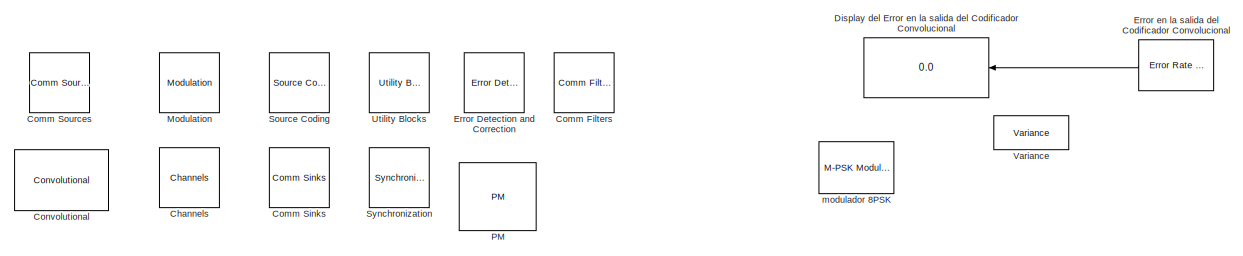
[diagram: root canvas - part 1/3, top center region]
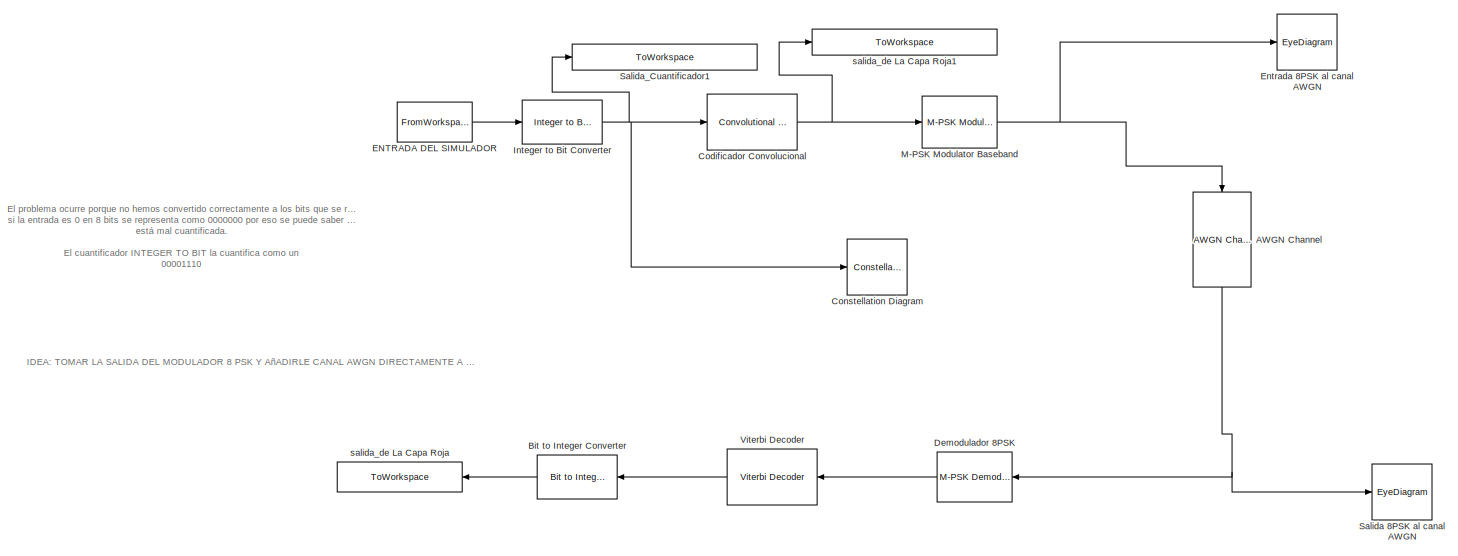
[diagram: root canvas - part 2/3, middle left region]
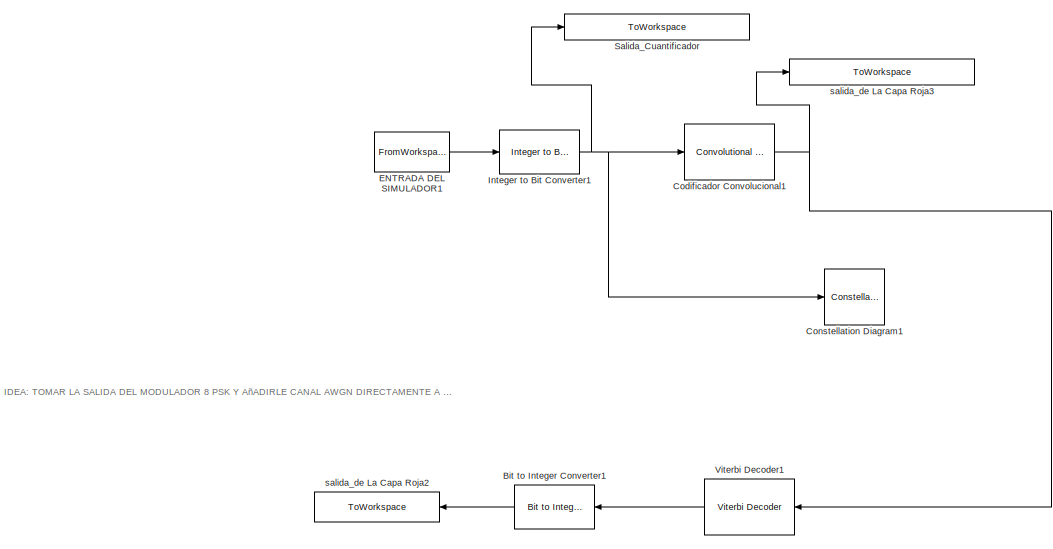
[diagram: root canvas - part 3/3, middle right region]
MODEL slx_94a819bdf3c8
KIND model
CONFIG AbsTol = auto
CONFIG FixedStep = auto
CONFIG MaxStep = auto
CONFIG MinStep = auto
CONFIG RelTol = 1e-3
CONFIG SampleTimeConstraint = Unconstrained
CONFIG Solver = VariableStepDiscrete
CONFIG SolverMode = SingleTasking
CONFIG SolverName = VariableStepDiscrete
CONFIG StartTime = 0.0
CONFIG StopTime = 420800
BLOCK [Reference] AWGN Channel  REF=commchan3/AWGN
Channel
  Ports = [1, 1]
  SourceBlock = commchan3/AWGN\nChannel
  SourceType = AWGN Channel
  UserDataPersistent = on
BLOCK [Reference] Bit to Integer Converter  REF=commutil2/Bit to Integer
Converter
  Ports = [1, 1]
  SourceBlock = commutil2/Bit to Integer\nConverter
  SourceType = Bit to Integer Converter
BLOCK [Reference] Bit to Integer Converter1  REF=commutil2/Bit to Integer
Converter
  Ports = [1, 1]
  SourceBlock = commutil2/Bit to Integer\nConverter
  SourceType = Bit to Integer Converter
BLOCK [Reference] Channels  REF=commlibv2/Channels
  Ports = []
  SourceBlock = commlibv2/Channels
  SourceType = Channels
BLOCK [Reference] Codificador Convolucional  REF=commcnvcod2/Convolutional
Encoder
  Ports = [1, 1]
  SourceBlock = commcnvcod2/Convolutional\nEncoder
  SourceType = Convolutional Encoder
BLOCK [Reference] Codificador Convolucional1  REF=commcnvcod2/Convolutional
Encoder
  Ports = [1, 1]
  SourceBlock = commcnvcod2/Convolutional\nEncoder
  SourceType = Convolutional Encoder
BLOCK [Reference] Comm Filters  REF=commlibv2/Comm
Filters
  Ports = []
  SourceBlock = commlibv2/Comm\nFilters
  SourceType = Comm Filters
BLOCK [Reference] Comm Sinks  REF=commlibv2/Comm
Sinks
  Ports = []
  SourceBlock = commlibv2/Comm\nSinks
  SourceType = Comm Sinks
BLOCK [Reference] Comm Sources  REF=commlibv2/Comm
Sources
  Ports = []
  SourceBlock = commlibv2/Comm\nSources
  SourceType = Comm Sources
BLOCK [ConstellationDiagram] Constellation Diagram
  Ports = [1]
  ScopeSpecificationString = comm.scopes.ConstellationDiagramBlockCfg('CurrentConfiguration', extmgr.ConfigurationSet(extmgr.Configuration('Core','General UI',true),extmgr.Configuration('Core','Source UI',true),extmgr.Configuration('Sources','WiredSimulink',true),extmgr.Configuration('Visuals','Constellation',true,'MinYLim','-0.9205','MaxYLim','1.2134','MinXLim','-0.9205','MaxXLim','1.2134','AxesProperties',struct('Color',[0 ...<+825ch>
BLOCK [ConstellationDiagram] Constellation Diagram1
  Ports = [1]
  ScopeSpecificationString = comm.scopes.ConstellationDiagramBlockCfg('CurrentConfiguration', extmgr.ConfigurationSet(extmgr.Configuration('Core','General UI',true),extmgr.Configuration('Core','Source UI',true),extmgr.Configuration('Sources','WiredSimulink',true),extmgr.Configuration('Visuals','Constellation',true,'MinYLim','-0.9205','MaxYLim','1.2134','MinXLim','-0.9205','MaxXLim','1.2134','AxesProperties',struct('Color',[0 ...<+851ch>
BLOCK [Reference] Convolutional  REF=commhdledac/Convolutional
  Ports = []
  SourceBlock = commhdledac/Convolutional
BLOCK [Reference] Demodulador 8PSK  REF=commdigbbndpm3/M-PSK
Demodulator
Baseband
  Ports = [1, 1]
  SourceBlock = commdigbbndpm3/M-PSK\nDemodulator\nBaseband
  SourceType = M-PSK Demodulator Baseband
BLOCK [Display] Display del Error en la salida del Codificador Convolucional
  Decimation = 1
  Ports = [1]
BLOCK [FromWorkspace] ENTRADA DEL SIMULADOR
  OutputAfterFinalValue = Holding final value
  SampleTime = 1
  VariableName = Imagen_REntrada
BLOCK [FromWorkspace] ENTRADA DEL SIMULADOR1
  OutputAfterFinalValue = Holding final value
  SampleTime = 1
  VariableName = Imagen_REntrada
BLOCK [EyeDiagram] Entrada 8PSK al canal AWGN
  Ports = [1]
  ScopeSpecificationString = comm.scopes.EyeDiagramBlockCfg('CurrentConfiguration', extmgr.ConfigurationSet(extmgr.Configuration('Core','General UI',true),extmgr.Configuration('Core','Source UI',true),extmgr.Configuration('Sources','WiredSimulink',true),extmgr.Configuration('Sources','Simulink',false),extmgr.Configuration('Sources','File',false),extmgr.Configuration('Sources','Workspace',false),extmgr.Configuration('Sources',...<+1068ch>
BLOCK [Reference] Error Detection and Correction  REF=commhdllib/Error Detection
and Correction
  Ports = []
  SourceBlock = commhdllib/Error Detection\nand Correction
  SourceType = Error Detection and Correction
BLOCK [Reference] Error en la salida del Codificador Convolucional  REF=commsink2/Error Rate
Calculation
  Ports = [2, 1]
  SourceBlock = commsink2/Error Rate\nCalculation
  SourceType = Error Rate Calculation
BLOCK [Reference] Integer to Bit Converter  REF=commutil2/Integer to Bit
Converter
  Ports = [1, 1]
  SourceBlock = commutil2/Integer to Bit\nConverter
  SourceType = Integer to Bit Converter
BLOCK [Reference] Integer to Bit Converter1  REF=commutil2/Integer to Bit
Converter
  Ports = [1, 1]
  SourceBlock = commutil2/Integer to Bit\nConverter
  SourceType = Integer to Bit Converter
BLOCK [Reference] M-PSK Modulator Baseband  REF=commdigbbndpm3/M-PSK
Modulator
Baseband
  Ports = [1, 1]
  SourceBlock = commdigbbndpm3/M-PSK\nModulator\nBaseband
  SourceType = M-PSK Modulator Baseband
BLOCK [Reference] Modulation  REF=commlibv2/Modulation
  Ports = []
  SourceBlock = commlibv2/Modulation
  SourceType = Modulation
BLOCK [Reference] PM  REF=commdigbbnd2/PM
  Ports = []
  SourceBlock = commdigbbnd2/PM
  SourceType = PM
BLOCK [EyeDiagram] Salida 8PSK al canal AWGN
  Ports = [1]
  ScopeSpecificationString = comm.scopes.EyeDiagramBlockCfg('CurrentConfiguration', extmgr.ConfigurationSet(extmgr.Configuration('Core','General UI',true),extmgr.Configuration('Core','Source UI',true),extmgr.Configuration('Sources','WiredSimulink',true),extmgr.Configuration('Sources','Simulink',false),extmgr.Configuration('Sources','File',false),extmgr.Configuration('Sources','Workspace',false),extmgr.Configuration('Sources',...<+1064ch>
BLOCK [ToWorkspace] Salida_Cuantificador
  FixptAsFi = on
  MaxDataPoints = inf
  Ports = [1]
  SampleTime = -1
  Save2DSignal = 2-D array (concatenate along first dimension)
  VariableName = Salida_Cuantificador
BLOCK [ToWorkspace] Salida_Cuantificador1
  FixptAsFi = on
  MaxDataPoints = inf
  Ports = [1]
  SampleTime = -1
  Save2DSignal = 2-D array (concatenate along first dimension)
  VariableName = Salida_Cuantificador1
BLOCK [Reference] Source Coding  REF=commlibv2/Source
Coding
  Ports = []
  SourceBlock = commlibv2/Source\nCoding
  SourceType = Source Coding
BLOCK [Reference] Synchronization  REF=commlibv2/Synchronization
  Ports = []
  SourceBlock = commlibv2/Synchronization
  SourceType = Synchronization
BLOCK [Reference] Utility Blocks  REF=commlibv2/Utility
Blocks
  Ports = []
  SourceBlock = commlibv2/Utility\nBlocks
  SourceType = Utility Blocks
BLOCK [Reference] Variance  REF=dspstat3/Variance
  Ports = [1, 1]
  SourceBlock = dspstat3/Variance
  SourceType = Variance
  UserDataPersistent = on
BLOCK [Reference] Viterbi Decoder  REF=commcnvcod2/Viterbi Decoder
  Ports = [1, 1]
  SourceBlock = commcnvcod2/Viterbi Decoder
  SourceType = Viterbi Decoder
BLOCK [Reference] Viterbi Decoder1  REF=commcnvcod2/Viterbi Decoder
  Ports = [1, 1]
  SourceBlock = commcnvcod2/Viterbi Decoder
  SourceType = Viterbi Decoder
BLOCK [Reference] modulador 8PSK  REF=commdigbbndpm3/M-PSK
Modulator
Baseband
  Ports = [1, 1]
  SourceBlock = commdigbbndpm3/M-PSK\nModulator\nBaseband
  SourceType = M-PSK Modulator Baseband
BLOCK [ToWorkspace] salida_de La Capa Roja
  FixptAsFi = on
  MaxDataPoints = inf
  Ports = [1]
  SampleTime = -1
  Save2DSignal = 2-D array (concatenate along first dimension)
  VariableName = IRS8PSK
BLOCK [ToWorkspace] salida_de La Capa Roja1
  FixptAsFi = on
  MaxDataPoints = inf
  Ports = [1]
  SampleTime = -1
  Save2DSignal = 2-D array (concatenate along first dimension)
  VariableName = Salida_Codificador_Convolucional
BLOCK [ToWorkspace] salida_de La Capa Roja2
  FixptAsFi = on
  MaxDataPoints = inf
  Ports = [1]
  SampleTime = -1
  Save2DSignal = 2-D array (concatenate along first dimension)
  VariableName = IRS8PSK1
BLOCK [ToWorkspace] salida_de La Capa Roja3
  FixptAsFi = on
  MaxDataPoints = inf
  Ports = [1]
  SampleTime = -1
  Save2DSignal = 2-D array (concatenate along first dimension)
  VariableName = Salida_Codificador_Convolucional1
ANNOTATION (root): El problema ocurre porque no hemos convertido correctamente a los bits que se requerían... si la entrada es 0 en 8 bits se representa como 0000000 por eso se puede saber que está mal cuantificada. El cuantificador INTEGER TO BIT la cuantifica como un 00001110 en vez de 00000000
ANNOTATION (root): IDEA: TOMAR LA SALIDA DEL MODULADOR 8 PSK Y AñADIRLE CANAL AWGN DIRECTAMENTE A MATLAB. LUEGO PROCESAR LA SALIDA DE VUELTA EN SIMULINK
NET AWGN Channel:1 -> Demodulador 8PSK:1, Salida 8PSK al canal AWGN:1
LINE Bit to Integer Converter1:1 -> salida_de La Capa Roja2:1
LINE Bit to Integer Converter:1 -> salida_de La Capa Roja:1
NET Codificador Convolucional1:1 -> Viterbi Decoder1:1, salida_de La Capa Roja3:1
NET Codificador Convolucional:1 -> M-PSK Modulator Baseband:1, salida_de La Capa Roja1:1
LINE Demodulador 8PSK:1 -> Viterbi Decoder:1
LINE ENTRADA DEL SIMULADOR1:1 -> Integer to Bit Converter1:1
LINE ENTRADA DEL SIMULADOR:1 -> Integer to Bit Converter:1
LINE Error en la salida del Codificador Convolucional:1 -> Display del Error en la salida del Codificador Convolucional:1
NET Integer to Bit Converter1:1 -> Codificador Convolucional1:1, Constellation Diagram1:1, Salida_Cuantificador:1
NET Integer to Bit Converter:1 -> Codificador Convolucional:1, Constellation Diagram:1, Salida_Cuantificador1:1
NET M-PSK Modulator Baseband:1 -> AWGN Channel:1, Entrada 8PSK al canal AWGN:1
LINE Viterbi Decoder1:1 -> Bit to Integer Converter1:1
LINE Viterbi Decoder:1 -> Bit to Integer Converter:1
note: NET lines group one-source signal fan-out (src -> all destinations, sorted); 1:1 wires keep LINE
